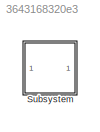
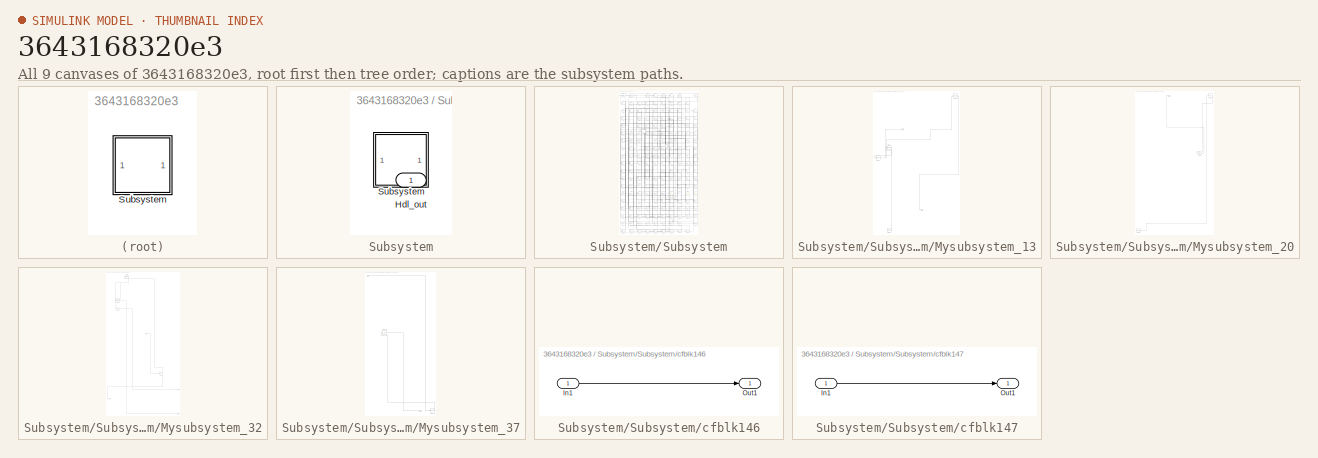
[diagram: thumbnail index - all 9 canvases of the model, root first then tree order]
MODEL slx_3643168320e3
KIND model
CONFIG AbsTol = auto
CONFIG EnableMultiTasking = off
CONFIG FixedStep = auto
CONFIG MaxStep = auto
CONFIG MinStep = auto
CONFIG RelTol = 1e-3
CONFIG SampleTimeConstraint = Unconstrained
CONFIG SolverName = VariableStepAuto
CONFIG StartTime = 0.0
CONFIG StopTime = 10.0
BLOCK [SubSystem] Subsystem
BLOCK [Outport] Subsystem/Hdl_out
  OutDataTypeStr = uint8
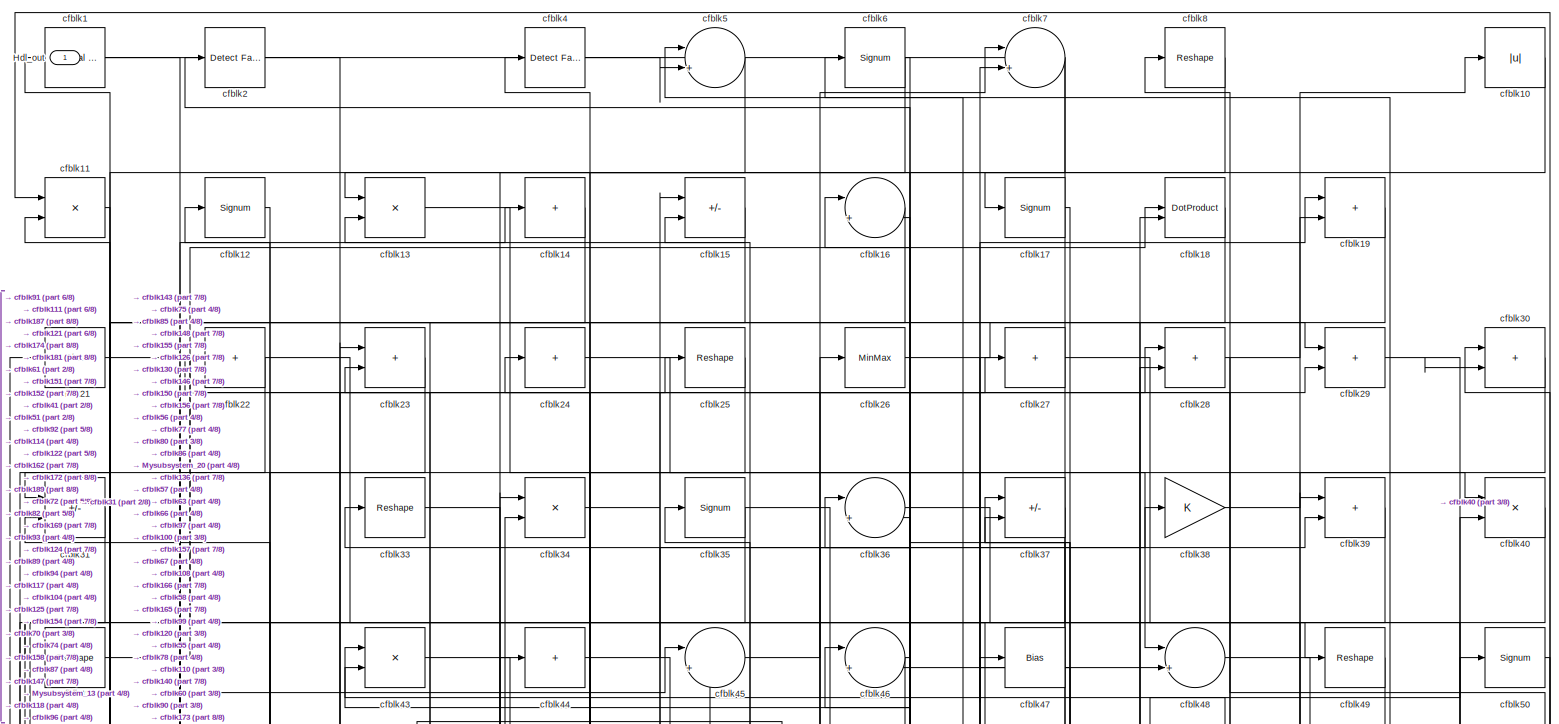
[diagram: Subsystem/Subsystem - part 1/8, full width, top band]
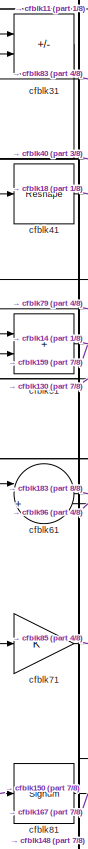
[diagram: Subsystem/Subsystem - part 2/8, top left region]
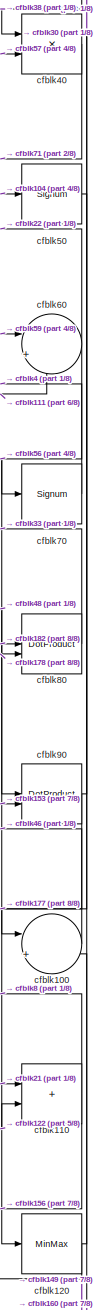
[diagram: Subsystem/Subsystem - part 3/8, middle right region]
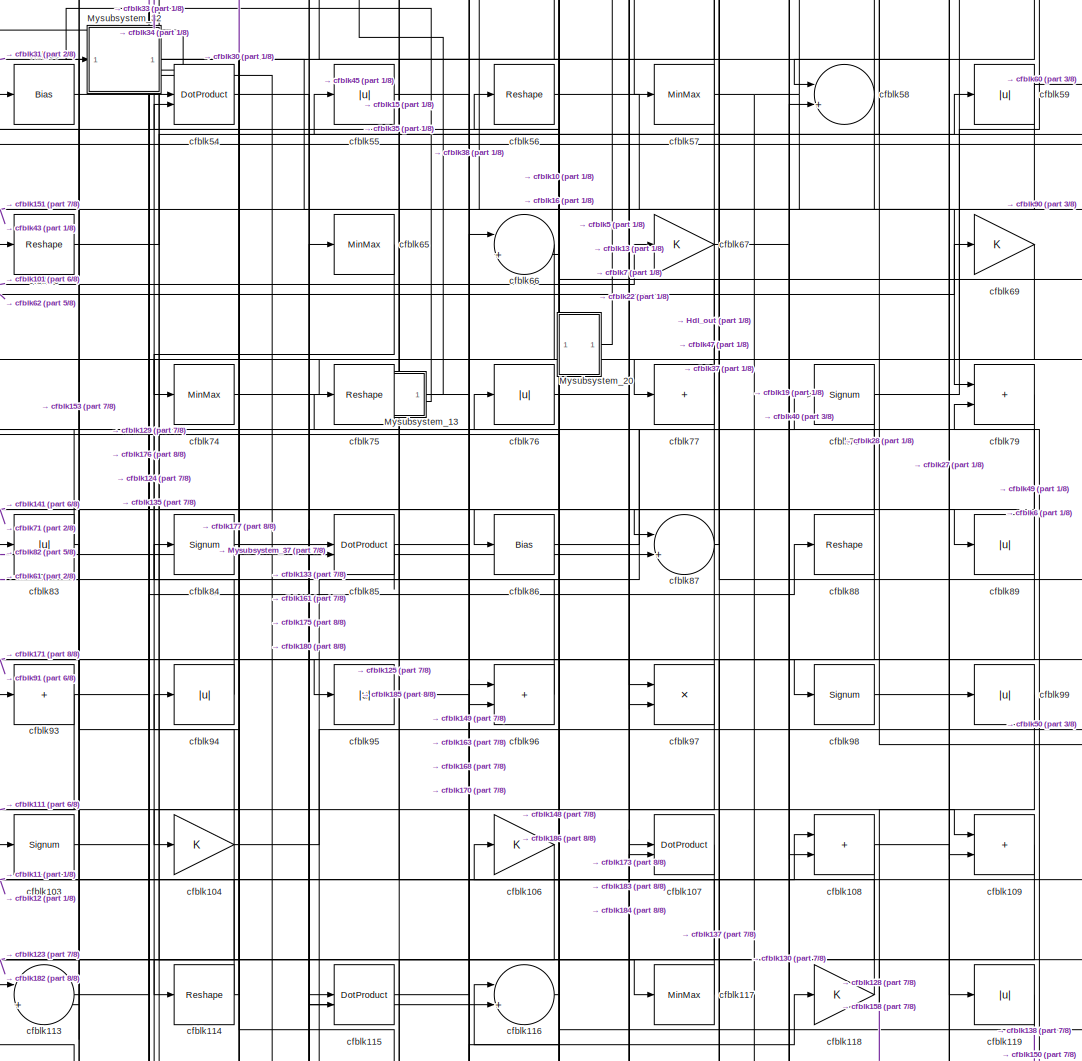
[diagram: Subsystem/Subsystem - part 4/8, central region]
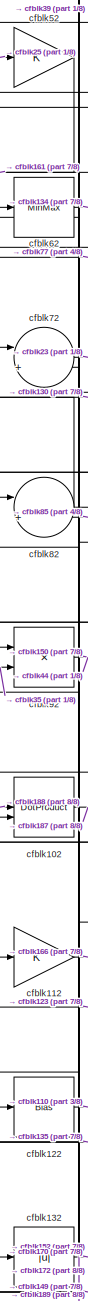
[diagram: Subsystem/Subsystem - part 5/8, middle left region]
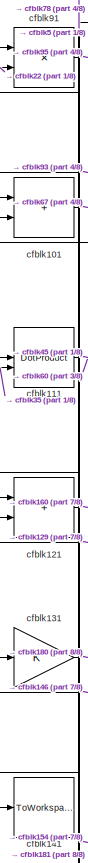
[diagram: Subsystem/Subsystem - part 6/8, middle left region]
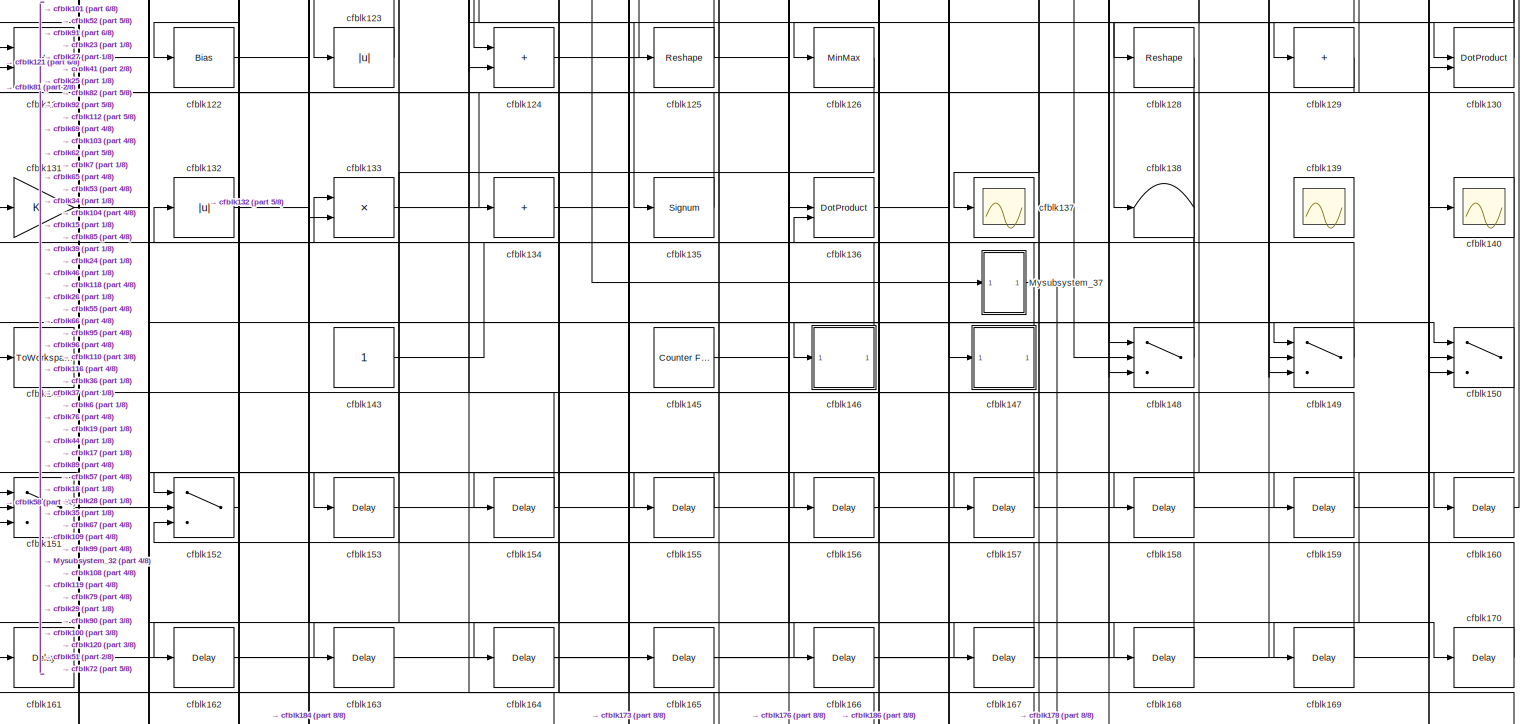
[diagram: Subsystem/Subsystem - part 7/8, full width, bottom band]
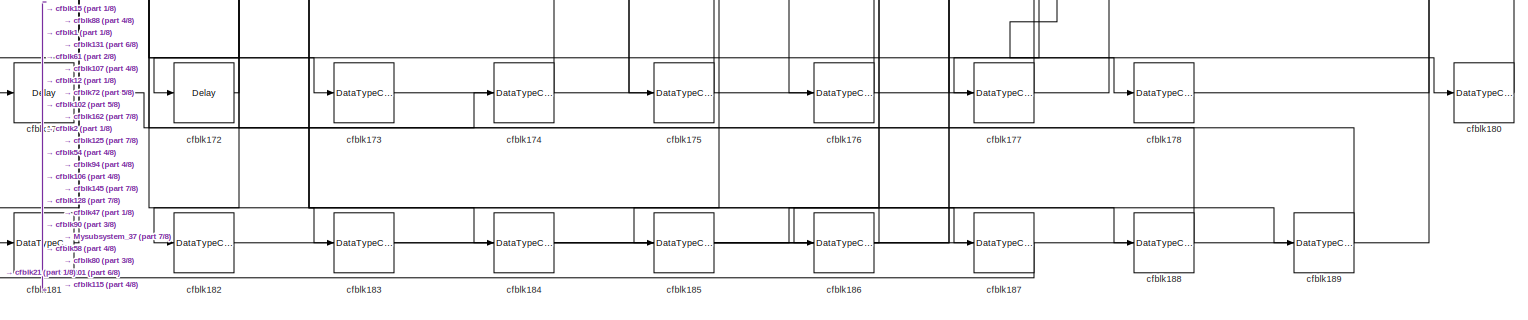
[diagram: Subsystem/Subsystem - part 8/8, full width, bottom band]
BLOCK [SubSystem] Subsystem/Subsystem
BLOCK [Outport] Subsystem/Subsystem/Hdl_out
  OutDataTypeStr = uint8
BLOCK [SubSystem] Subsystem/Subsystem/Mysubsystem_13
  RTWFcnName = Mysubsystem_13
  RTWFcnNameOpts = User specified
  RTWFileNameOpts = Use function name
  RTWSystemCode = Reusable function
  TreatAsAtomicUnit = on
BLOCK [Outport] Subsystem/Subsystem/Mysubsystem_13/Out1
BLOCK [Outport] Subsystem/Subsystem/Mysubsystem_13/Out2
  Port = 2
BLOCK [Reference] Subsystem/Subsystem/Mysubsystem_13/cfblk144  REF=hdlsllib/Sources/Counter
Limited
  SourceBlock = hdlsllib/Sources/Counter\nLimited
  SourceType = Counter Limited
BLOCK [Reshape] Subsystem/Subsystem/Mysubsystem_13/cfblk20
BLOCK [Reshape] Subsystem/Subsystem/Mysubsystem_13/cfblk64
BLOCK [MinMax] Subsystem/Subsystem/Mysubsystem_13/cfblk73
BLOCK [SubSystem] Subsystem/Subsystem/Mysubsystem_20
  RTWFcnName = Mysubsystem_20
  RTWFcnNameOpts = User specified
  RTWFileNameOpts = Use function name
  RTWSystemCode = Reusable function
  TreatAsAtomicUnit = on
BLOCK [Outport] Subsystem/Subsystem/Mysubsystem_20/Out1
BLOCK [Reference] Subsystem/Subsystem/Mysubsystem_20/cfblk142  REF=hdlsllib/Sources/Counter
Limited
  SourceBlock = hdlsllib/Sources/Counter\nLimited
  SourceType = Counter Limited
BLOCK [Gain] Subsystem/Subsystem/Mysubsystem_20/cfblk68
BLOCK [Abs] Subsystem/Subsystem/Mysubsystem_20/cfblk9
  SaturateOnIntegerOverflow = off
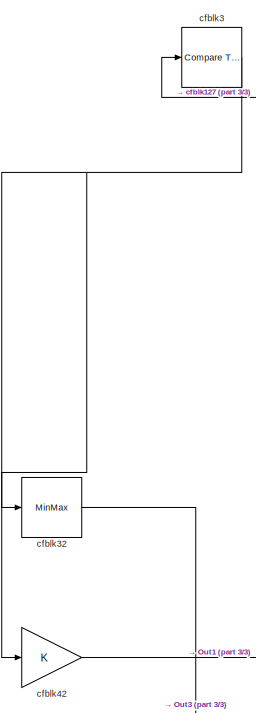
[diagram: Subsystem/Subsystem/Mysubsystem_32 - part 1/3, top left region]
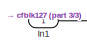
[diagram: Subsystem/Subsystem/Mysubsystem_32 - part 2/3, central region]
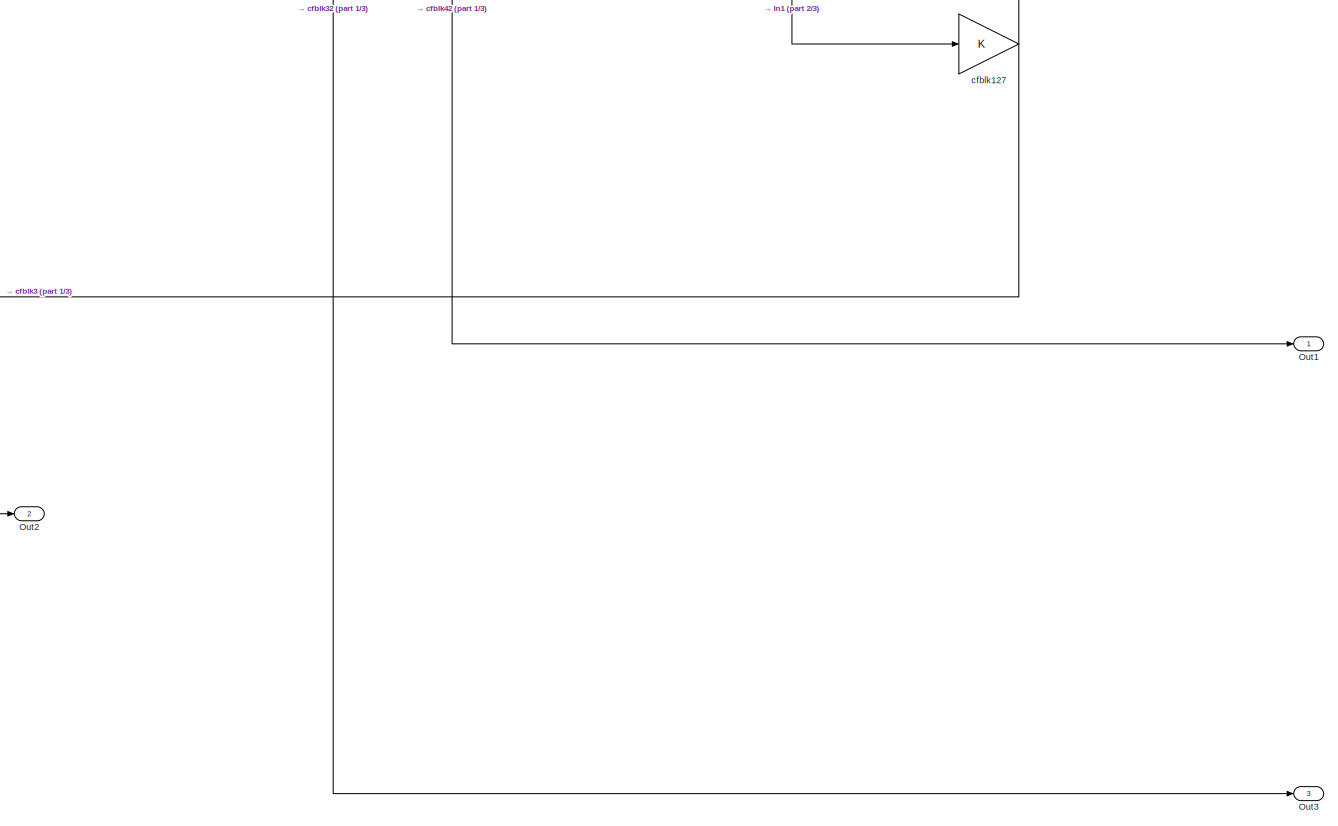
[diagram: Subsystem/Subsystem/Mysubsystem_32 - part 3/3, full width, bottom band]
BLOCK [SubSystem] Subsystem/Subsystem/Mysubsystem_32
  RTWFcnName = Mysubsystem_32
  RTWFcnNameOpts = User specified
  RTWFileNameOpts = Use function name
  RTWSystemCode = Reusable function
  TreatAsAtomicUnit = on
BLOCK [Inport] Subsystem/Subsystem/Mysubsystem_32/In1
BLOCK [Outport] Subsystem/Subsystem/Mysubsystem_32/Out1
BLOCK [Outport] Subsystem/Subsystem/Mysubsystem_32/Out2
  Port = 2
BLOCK [Outport] Subsystem/Subsystem/Mysubsystem_32/Out3
  Port = 3
BLOCK [Gain] Subsystem/Subsystem/Mysubsystem_32/cfblk127
BLOCK [Reference] Subsystem/Subsystem/Mysubsystem_32/cfblk3  REF=hdlsllib/Logic and Bit
Operations/Compare
To Zero
  SourceBlock = hdlsllib/Logic and Bit\nOperations/Compare\nTo Zero
  SourceType = Compare To Zero
BLOCK [MinMax] Subsystem/Subsystem/Mysubsystem_32/cfblk32
BLOCK [Gain] Subsystem/Subsystem/Mysubsystem_32/cfblk42
BLOCK [SubSystem] Subsystem/Subsystem/Mysubsystem_37
  RTWFcnName = Mysubsystem_37
  RTWFcnNameOpts = User specified
  RTWFileNameOpts = Use function name
  RTWSystemCode = Reusable function
  TreatAsAtomicUnit = on
BLOCK [Inport] Subsystem/Subsystem/Mysubsystem_37/In1
BLOCK [Outport] Subsystem/Subsystem/Mysubsystem_37/Out1
BLOCK [Abs] Subsystem/Subsystem/Mysubsystem_37/cfblk105
  SaturateOnIntegerOverflow = off
BLOCK [DataTypeConversion] Subsystem/Subsystem/Mysubsystem_37/cfblk179
  OutDataTypeStr = uint8
  RndMeth = Floor
  SaturateOnIntegerOverflow = off
BLOCK [Reference] Subsystem/Subsystem/cfblk1  REF=hdlsllib/Logic and Bit
Operations/Interval Test
  SourceBlock = hdlsllib/Logic and Bit\nOperations/Interval Test
  SourceType = Interval Test
BLOCK [Abs] Subsystem/Subsystem/cfblk10
  OutDataTypeStr = uint8
  SaturateOnIntegerOverflow = off
BLOCK [Sum] Subsystem/Subsystem/cfblk100
  Inputs = |++
  OutDataTypeStr = uint8
BLOCK [Sum] Subsystem/Subsystem/cfblk101
  IconShape = rectangular
  OutDataTypeStr = uint8
BLOCK [DotProduct] Subsystem/Subsystem/cfblk102
  OutDataTypeStr = uint8
BLOCK [Signum] Subsystem/Subsystem/cfblk103
BLOCK [Gain] Subsystem/Subsystem/cfblk104
  OutDataTypeStr = uint8
BLOCK [Gain] Subsystem/Subsystem/cfblk106
  OutDataTypeStr = uint8
BLOCK [DotProduct] Subsystem/Subsystem/cfblk107
  OutDataTypeStr = uint8
BLOCK [Sum] Subsystem/Subsystem/cfblk108
  IconShape = rectangular
  OutDataTypeStr = uint8
BLOCK [Sum] Subsystem/Subsystem/cfblk109
  IconShape = rectangular
  OutDataTypeStr = uint8
BLOCK [Product] Subsystem/Subsystem/cfblk11
  Inputs = */
  OutDataTypeStr = uint8
  RndMeth = Zero
  SaturateOnIntegerOverflow = on
BLOCK [Sum] Subsystem/Subsystem/cfblk110
  IconShape = rectangular
  OutDataTypeStr = uint8
BLOCK [DotProduct] Subsystem/Subsystem/cfblk111
  OutDataTypeStr = uint8
BLOCK [Gain] Subsystem/Subsystem/cfblk112
  OutDataTypeStr = uint8
BLOCK [Sum] Subsystem/Subsystem/cfblk113
  Inputs = |++
  OutDataTypeStr = uint8
BLOCK [Reshape] Subsystem/Subsystem/cfblk114
BLOCK [DotProduct] Subsystem/Subsystem/cfblk115
  OutDataTypeStr = uint8
BLOCK [Sum] Subsystem/Subsystem/cfblk116
  Inputs = |++
  OutDataTypeStr = uint8
BLOCK [MinMax] Subsystem/Subsystem/cfblk117
  OutDataTypeStr = uint8
BLOCK [Gain] Subsystem/Subsystem/cfblk118
  OutDataTypeStr = uint8
BLOCK [Abs] Subsystem/Subsystem/cfblk119
  OutDataTypeStr = uint8
  SaturateOnIntegerOverflow = off
BLOCK [Signum] Subsystem/Subsystem/cfblk12
BLOCK [MinMax] Subsystem/Subsystem/cfblk120
  OutDataTypeStr = uint8
BLOCK [Sum] Subsystem/Subsystem/cfblk121
  IconShape = rectangular
  OutDataTypeStr = uint8
BLOCK [Bias] Subsystem/Subsystem/cfblk122
  Bias = 0.0
  SaturateOnIntegerOverflow = off
BLOCK [Abs] Subsystem/Subsystem/cfblk123
  OutDataTypeStr = uint8
  SaturateOnIntegerOverflow = off
BLOCK [Sum] Subsystem/Subsystem/cfblk124
  IconShape = rectangular
  OutDataTypeStr = uint8
BLOCK [Reshape] Subsystem/Subsystem/cfblk125
BLOCK [MinMax] Subsystem/Subsystem/cfblk126
  OutDataTypeStr = uint8
BLOCK [Reshape] Subsystem/Subsystem/cfblk128
BLOCK [Sum] Subsystem/Subsystem/cfblk129
  IconShape = rectangular
  Inputs = +
  OutDataTypeStr = uint8
BLOCK [Product] Subsystem/Subsystem/cfblk13
  Inputs = */
  OutDataTypeStr = uint8
  RndMeth = Zero
  SaturateOnIntegerOverflow = on
BLOCK [DotProduct] Subsystem/Subsystem/cfblk130
  OutDataTypeStr = uint8
BLOCK [Gain] Subsystem/Subsystem/cfblk131
  OutDataTypeStr = uint8
BLOCK [Abs] Subsystem/Subsystem/cfblk132
  OutDataTypeStr = uint8
  SaturateOnIntegerOverflow = off
BLOCK [Product] Subsystem/Subsystem/cfblk133
  Inputs = */
  OutDataTypeStr = uint8
  RndMeth = Zero
  SaturateOnIntegerOverflow = on
BLOCK [Sum] Subsystem/Subsystem/cfblk134
  IconShape = rectangular
  Inputs = +
  OutDataTypeStr = uint8
BLOCK [Signum] Subsystem/Subsystem/cfblk135
BLOCK [DotProduct] Subsystem/Subsystem/cfblk136
  OutDataTypeStr = uint8
BLOCK [Scope] Subsystem/Subsystem/cfblk137
  Floating = off
  NumInputPorts = 1
  ScopeSpecificationString = Simulink.scopes.TimeScopeBlockCfg('CurrentConfiguration', extmgr.ConfigurationSet(extmgr.Configuration('Core','General UI',true),extmgr.Configuration('Core','Source UI',true),extmgr.Configuration('Sources','WiredSimulink',true,'DataLoggingVariableName','ScopeData1','DataLoggingSaveFormat','Array','DataLoggingLimitDataPoints',true,'DataLoggingDecimation','1'),extmgr.Configuration('Visuals','Time Do...<+868ch>
BLOCK [Terminator] Subsystem/Subsystem/cfblk138
BLOCK [Scope] Subsystem/Subsystem/cfblk139
  Floating = on
  NumInputPorts = 1
  ScopeSpecificationString = Simulink.scopes.TimeScopeBlockCfg('CurrentConfiguration', extmgr.ConfigurationSet(extmgr.Configuration('Core','General UI',true,'FigureColor',[0.156862745098039 0.156862745098039 0.156862745098039]),extmgr.Configuration('Core','Source UI',true),extmgr.Configuration('Sources','WiredSimulink',true,'DataLoggingVariableName','ScopeData2','DataLoggingSaveFormat','StructureWithTime','DataLoggingLimitDat...<+2713ch>
BLOCK [Sum] Subsystem/Subsystem/cfblk14
  IconShape = rectangular
  Inputs = +
  OutDataTypeStr = uint8
BLOCK [Scope] Subsystem/Subsystem/cfblk140
  Floating = off
  NumInputPorts = 1
  ScopeSpecificationString = Simulink.scopes.TimeScopeBlockCfg('CurrentConfiguration', extmgr.ConfigurationSet(extmgr.Configuration('Core','General UI',true),extmgr.Configuration('Core','Source UI',true),extmgr.Configuration('Sources','WiredSimulink',true,'DataLoggingSaveFormat','Array','DataLoggingLimitDataPoints',true,'DataLoggingDecimation','1'),extmgr.Configuration('Visuals','Time Domain',true,'DisplayPropertyDefaults',st...<+829ch>
BLOCK [ToWorkspace] Subsystem/Subsystem/cfblk141
  MaxDataPoints = inf
  SampleTime = -1
  SaveFormat = Timeseries
  VariableName = simout
BLOCK [Constant] Subsystem/Subsystem/cfblk143
  OutDataTypeStr = uint8
  SampleTime = -1
BLOCK [Reference] Subsystem/Subsystem/cfblk145  REF=hdlsllib/Sources/Counter
Free-Running
  SourceBlock = hdlsllib/Sources/Counter\nFree-Running
  SourceType = Counter Free-Running
BLOCK [SubSystem] Subsystem/Subsystem/cfblk146
  LibrarySourceBlock = hdlsllib/Ports &\nSubsystems/Subsystem
BLOCK [Inport] Subsystem/Subsystem/cfblk146/In1
BLOCK [Outport] Subsystem/Subsystem/cfblk146/Out1
BLOCK [SubSystem] Subsystem/Subsystem/cfblk147
  LibrarySourceBlock = hdlsllib/Ports &\nSubsystems/Subsystem
BLOCK [Inport] Subsystem/Subsystem/cfblk147/In1
BLOCK [Outport] Subsystem/Subsystem/cfblk147/Out1
BLOCK [Switch] Subsystem/Subsystem/cfblk148
  InputSameDT = off
  OutDataTypeStr = uint8
  SaturateOnIntegerOverflow = off
BLOCK [Switch] Subsystem/Subsystem/cfblk149
  InputSameDT = off
  OutDataTypeStr = uint8
  SaturateOnIntegerOverflow = off
BLOCK [Sum] Subsystem/Subsystem/cfblk15
  IconShape = rectangular
  Inputs = +-
  OutDataTypeStr = uint8
BLOCK [Switch] Subsystem/Subsystem/cfblk150
  InputSameDT = off
  OutDataTypeStr = uint8
  SaturateOnIntegerOverflow = off
BLOCK [Switch] Subsystem/Subsystem/cfblk151
  InputSameDT = off
  OutDataTypeStr = uint8
  SaturateOnIntegerOverflow = off
BLOCK [Switch] Subsystem/Subsystem/cfblk152
  InputSameDT = off
  OutDataTypeStr = uint8
  SaturateOnIntegerOverflow = off
BLOCK [Delay] Subsystem/Subsystem/cfblk153
  InputPortMap = u0
  SampleTime = 1
BLOCK [Delay] Subsystem/Subsystem/cfblk154
  InputPortMap = u0
  SampleTime = 1
BLOCK [Delay] Subsystem/Subsystem/cfblk155
  InputPortMap = u0
  SampleTime = 1
BLOCK [Delay] Subsystem/Subsystem/cfblk156
  InputPortMap = u0
  SampleTime = 1
BLOCK [Delay] Subsystem/Subsystem/cfblk157
  InputPortMap = u0
  SampleTime = 1
BLOCK [Delay] Subsystem/Subsystem/cfblk158
  InputPortMap = u0
  SampleTime = 1
BLOCK [Delay] Subsystem/Subsystem/cfblk159
  InputPortMap = u0
  SampleTime = 1
BLOCK [Sum] Subsystem/Subsystem/cfblk16
  Inputs = |++
  OutDataTypeStr = uint8
BLOCK [Delay] Subsystem/Subsystem/cfblk160
  InputPortMap = u0
  SampleTime = 1
BLOCK [Delay] Subsystem/Subsystem/cfblk161
  InputPortMap = u0
  SampleTime = 1
BLOCK [Delay] Subsystem/Subsystem/cfblk162
  InputPortMap = u0
  SampleTime = 1
BLOCK [Delay] Subsystem/Subsystem/cfblk163
  InputPortMap = u0
  SampleTime = 1
BLOCK [Delay] Subsystem/Subsystem/cfblk164
  InputPortMap = u0
  SampleTime = 1
BLOCK [Delay] Subsystem/Subsystem/cfblk165
  InputPortMap = u0
  SampleTime = 1
BLOCK [Delay] Subsystem/Subsystem/cfblk166
  InputPortMap = u0
  SampleTime = 1
BLOCK [Delay] Subsystem/Subsystem/cfblk167
  InputPortMap = u0
  SampleTime = 1
BLOCK [Delay] Subsystem/Subsystem/cfblk168
  InputPortMap = u0
  SampleTime = 1
BLOCK [Delay] Subsystem/Subsystem/cfblk169
  InputPortMap = u0
  SampleTime = 1
BLOCK [Signum] Subsystem/Subsystem/cfblk17
BLOCK [Delay] Subsystem/Subsystem/cfblk170
  InputPortMap = u0
  SampleTime = 1
BLOCK [Delay] Subsystem/Subsystem/cfblk171
  InputPortMap = u0
  SampleTime = 1
BLOCK [Delay] Subsystem/Subsystem/cfblk172
  InputPortMap = u0
  SampleTime = 1
BLOCK [DataTypeConversion] Subsystem/Subsystem/cfblk173
  OutDataTypeStr = uint8
  RndMeth = Floor
  SaturateOnIntegerOverflow = off
BLOCK [DataTypeConversion] Subsystem/Subsystem/cfblk174
  OutDataTypeStr = uint8
  RndMeth = Floor
  SaturateOnIntegerOverflow = off
BLOCK [DataTypeConversion] Subsystem/Subsystem/cfblk175
  OutDataTypeStr = uint8
  RndMeth = Floor
  SaturateOnIntegerOverflow = off
BLOCK [DataTypeConversion] Subsystem/Subsystem/cfblk176
  OutDataTypeStr = uint8
  RndMeth = Floor
  SaturateOnIntegerOverflow = off
BLOCK [DataTypeConversion] Subsystem/Subsystem/cfblk177
  OutDataTypeStr = uint8
  RndMeth = Floor
  SaturateOnIntegerOverflow = off
BLOCK [DataTypeConversion] Subsystem/Subsystem/cfblk178
  OutDataTypeStr = uint8
  RndMeth = Floor
  SaturateOnIntegerOverflow = off
BLOCK [DotProduct] Subsystem/Subsystem/cfblk18
  OutDataTypeStr = uint8
BLOCK [DataTypeConversion] Subsystem/Subsystem/cfblk180
  OutDataTypeStr = uint8
  RndMeth = Floor
  SaturateOnIntegerOverflow = off
BLOCK [DataTypeConversion] Subsystem/Subsystem/cfblk181
  OutDataTypeStr = uint8
  RndMeth = Floor
  SaturateOnIntegerOverflow = off
BLOCK [DataTypeConversion] Subsystem/Subsystem/cfblk182
  OutDataTypeStr = uint8
  RndMeth = Floor
  SaturateOnIntegerOverflow = off
BLOCK [DataTypeConversion] Subsystem/Subsystem/cfblk183
  OutDataTypeStr = uint8
  RndMeth = Floor
  SaturateOnIntegerOverflow = off
BLOCK [DataTypeConversion] Subsystem/Subsystem/cfblk184
  OutDataTypeStr = uint8
  RndMeth = Floor
  SaturateOnIntegerOverflow = off
BLOCK [DataTypeConversion] Subsystem/Subsystem/cfblk185
  OutDataTypeStr = uint8
  RndMeth = Floor
  SaturateOnIntegerOverflow = off
BLOCK [DataTypeConversion] Subsystem/Subsystem/cfblk186
  OutDataTypeStr = uint8
  RndMeth = Floor
  SaturateOnIntegerOverflow = off
BLOCK [DataTypeConversion] Subsystem/Subsystem/cfblk187
  OutDataTypeStr = uint8
  RndMeth = Floor
  SaturateOnIntegerOverflow = off
BLOCK [DataTypeConversion] Subsystem/Subsystem/cfblk188
  OutDataTypeStr = uint8
  RndMeth = Floor
  SaturateOnIntegerOverflow = off
BLOCK [DataTypeConversion] Subsystem/Subsystem/cfblk189
  OutDataTypeStr = uint8
  RndMeth = Floor
  SaturateOnIntegerOverflow = off
BLOCK [Sum] Subsystem/Subsystem/cfblk19
  IconShape = rectangular
  OutDataTypeStr = uint8
BLOCK [Reference] Subsystem/Subsystem/cfblk2  REF=hdlsllib/Logic and Bit
Operations/Detect Fall
Nonpositive
  SourceBlock = hdlsllib/Logic and Bit\nOperations/Detect Fall\nNonpositive
  SourceType = Detect Fall Nonpositive
BLOCK [Bias] Subsystem/Subsystem/cfblk21
  Bias = 0.0
  SaturateOnIntegerOverflow = off
BLOCK [Sum] Subsystem/Subsystem/cfblk22
  IconShape = rectangular
  Inputs = +
  OutDataTypeStr = uint8
BLOCK [Sum] Subsystem/Subsystem/cfblk23
  IconShape = rectangular
  OutDataTypeStr = uint8
BLOCK [Sum] Subsystem/Subsystem/cfblk24
  IconShape = rectangular
  Inputs = +
  OutDataTypeStr = uint8
BLOCK [Reshape] Subsystem/Subsystem/cfblk25
BLOCK [MinMax] Subsystem/Subsystem/cfblk26
  OutDataTypeStr = uint8
BLOCK [Sum] Subsystem/Subsystem/cfblk27
  IconShape = rectangular
  Inputs = +
  OutDataTypeStr = uint8
BLOCK [Sum] Subsystem/Subsystem/cfblk28
  IconShape = rectangular
  OutDataTypeStr = uint8
BLOCK [Sum] Subsystem/Subsystem/cfblk29
  IconShape = rectangular
  OutDataTypeStr = uint8
BLOCK [Sum] Subsystem/Subsystem/cfblk30
  IconShape = rectangular
  OutDataTypeStr = uint8
BLOCK [Sum] Subsystem/Subsystem/cfblk31
  IconShape = rectangular
  Inputs = +-
  OutDataTypeStr = uint8
BLOCK [Reshape] Subsystem/Subsystem/cfblk33
BLOCK [Product] Subsystem/Subsystem/cfblk34
  Inputs = */
  OutDataTypeStr = uint8
  RndMeth = Zero
  SaturateOnIntegerOverflow = on
BLOCK [Signum] Subsystem/Subsystem/cfblk35
BLOCK [Sum] Subsystem/Subsystem/cfblk36
  Inputs = |++
  OutDataTypeStr = uint8
BLOCK [Sum] Subsystem/Subsystem/cfblk37
  IconShape = rectangular
  Inputs = +-
  OutDataTypeStr = uint8
BLOCK [Gain] Subsystem/Subsystem/cfblk38
  OutDataTypeStr = uint8
BLOCK [Sum] Subsystem/Subsystem/cfblk39
  IconShape = rectangular
  OutDataTypeStr = uint8
BLOCK [Reference] Subsystem/Subsystem/cfblk4  REF=hdlsllib/Logic and Bit
Operations/Detect Fall
Nonpositive
  SourceBlock = hdlsllib/Logic and Bit\nOperations/Detect Fall\nNonpositive
  SourceType = Detect Fall Nonpositive
BLOCK [Product] Subsystem/Subsystem/cfblk40
  Inputs = */
  OutDataTypeStr = uint8
  RndMeth = Zero
  SaturateOnIntegerOverflow = on
BLOCK [Reshape] Subsystem/Subsystem/cfblk41
BLOCK [Product] Subsystem/Subsystem/cfblk43
  Inputs = */
  OutDataTypeStr = uint8
  RndMeth = Zero
  SaturateOnIntegerOverflow = on
BLOCK [Sum] Subsystem/Subsystem/cfblk44
  IconShape = rectangular
  Inputs = +
  OutDataTypeStr = uint8
BLOCK [Sum] Subsystem/Subsystem/cfblk45
  Inputs = |++
  OutDataTypeStr = uint8
BLOCK [Sum] Subsystem/Subsystem/cfblk46
  Inputs = |++
  OutDataTypeStr = uint8
BLOCK [Bias] Subsystem/Subsystem/cfblk47
  Bias = 0.0
  SaturateOnIntegerOverflow = off
BLOCK [Sum] Subsystem/Subsystem/cfblk48
  Inputs = |++
  OutDataTypeStr = uint8
BLOCK [Reshape] Subsystem/Subsystem/cfblk49
BLOCK [Sum] Subsystem/Subsystem/cfblk5
  Inputs = |++
  OutDataTypeStr = uint8
BLOCK [Signum] Subsystem/Subsystem/cfblk50
BLOCK [Sum] Subsystem/Subsystem/cfblk51
  IconShape = rectangular
  OutDataTypeStr = uint8
BLOCK [Gain] Subsystem/Subsystem/cfblk52
  OutDataTypeStr = uint8
BLOCK [Bias] Subsystem/Subsystem/cfblk53
  Bias = 0.0
  SaturateOnIntegerOverflow = off
BLOCK [DotProduct] Subsystem/Subsystem/cfblk54
  OutDataTypeStr = uint8
BLOCK [Abs] Subsystem/Subsystem/cfblk55
  OutDataTypeStr = uint8
  SaturateOnIntegerOverflow = off
BLOCK [Reshape] Subsystem/Subsystem/cfblk56
BLOCK [MinMax] Subsystem/Subsystem/cfblk57
  OutDataTypeStr = uint8
BLOCK [Sum] Subsystem/Subsystem/cfblk58
  Inputs = |++
  OutDataTypeStr = uint8
BLOCK [Abs] Subsystem/Subsystem/cfblk59
  OutDataTypeStr = uint8
  SaturateOnIntegerOverflow = off
BLOCK [Signum] Subsystem/Subsystem/cfblk6
BLOCK [Sum] Subsystem/Subsystem/cfblk60
  Inputs = |++
  OutDataTypeStr = uint8
BLOCK [Sum] Subsystem/Subsystem/cfblk61
  Inputs = |++
  OutDataTypeStr = uint8
BLOCK [MinMax] Subsystem/Subsystem/cfblk62
  OutDataTypeStr = uint8
BLOCK [Reshape] Subsystem/Subsystem/cfblk63
BLOCK [MinMax] Subsystem/Subsystem/cfblk65
  OutDataTypeStr = uint8
BLOCK [Sum] Subsystem/Subsystem/cfblk66
  Inputs = |++
  OutDataTypeStr = uint8
BLOCK [Gain] Subsystem/Subsystem/cfblk67
  OutDataTypeStr = uint8
BLOCK [Gain] Subsystem/Subsystem/cfblk69
  OutDataTypeStr = uint8
BLOCK [Sum] Subsystem/Subsystem/cfblk7
  Inputs = |++
  OutDataTypeStr = uint8
BLOCK [Signum] Subsystem/Subsystem/cfblk70
BLOCK [Gain] Subsystem/Subsystem/cfblk71
  OutDataTypeStr = uint8
BLOCK [Sum] Subsystem/Subsystem/cfblk72
  Inputs = |++
  OutDataTypeStr = uint8
BLOCK [MinMax] Subsystem/Subsystem/cfblk74
  OutDataTypeStr = uint8
BLOCK [Reshape] Subsystem/Subsystem/cfblk75
BLOCK [Abs] Subsystem/Subsystem/cfblk76
  OutDataTypeStr = uint8
  SaturateOnIntegerOverflow = off
BLOCK [Sum] Subsystem/Subsystem/cfblk77
  IconShape = rectangular
  Inputs = +
  OutDataTypeStr = uint8
BLOCK [Signum] Subsystem/Subsystem/cfblk78
BLOCK [Sum] Subsystem/Subsystem/cfblk79
  IconShape = rectangular
  OutDataTypeStr = uint8
BLOCK [Reshape] Subsystem/Subsystem/cfblk8
BLOCK [DotProduct] Subsystem/Subsystem/cfblk80
  OutDataTypeStr = uint8
BLOCK [Signum] Subsystem/Subsystem/cfblk81
BLOCK [Sum] Subsystem/Subsystem/cfblk82
  Inputs = |++
  OutDataTypeStr = uint8
BLOCK [Abs] Subsystem/Subsystem/cfblk83
  OutDataTypeStr = uint8
  SaturateOnIntegerOverflow = off
BLOCK [Signum] Subsystem/Subsystem/cfblk84
BLOCK [DotProduct] Subsystem/Subsystem/cfblk85
  OutDataTypeStr = uint8
BLOCK [Bias] Subsystem/Subsystem/cfblk86
  Bias = 0.0
  SaturateOnIntegerOverflow = off
BLOCK [Sum] Subsystem/Subsystem/cfblk87
  Inputs = |++
  OutDataTypeStr = uint8
BLOCK [Reshape] Subsystem/Subsystem/cfblk88
BLOCK [Abs] Subsystem/Subsystem/cfblk89
  OutDataTypeStr = uint8
  SaturateOnIntegerOverflow = off
BLOCK [DotProduct] Subsystem/Subsystem/cfblk90
  OutDataTypeStr = uint8
BLOCK [Product] Subsystem/Subsystem/cfblk91
  Inputs = */
  OutDataTypeStr = uint8
  RndMeth = Zero
  SaturateOnIntegerOverflow = on
BLOCK [Product] Subsystem/Subsystem/cfblk92
  Inputs = */
  OutDataTypeStr = uint8
  RndMeth = Zero
  SaturateOnIntegerOverflow = on
BLOCK [Sum] Subsystem/Subsystem/cfblk93
  IconShape = rectangular
  Inputs = +
  OutDataTypeStr = uint8
BLOCK [Abs] Subsystem/Subsystem/cfblk94
  OutDataTypeStr = uint8
  SaturateOnIntegerOverflow = off
BLOCK [Abs] Subsystem/Subsystem/cfblk95
  OutDataTypeStr = uint8
  SaturateOnIntegerOverflow = off
BLOCK [Sum] Subsystem/Subsystem/cfblk96
  IconShape = rectangular
  OutDataTypeStr = uint8
BLOCK [Product] Subsystem/Subsystem/cfblk97
  Inputs = */
  OutDataTypeStr = uint8
  RndMeth = Zero
  SaturateOnIntegerOverflow = on
BLOCK [Signum] Subsystem/Subsystem/cfblk98
BLOCK [Abs] Subsystem/Subsystem/cfblk99
  OutDataTypeStr = uint8
  SaturateOnIntegerOverflow = off
LINE Subsystem/Subsystem/Mysubsystem_13/cfblk144:1 -> Subsystem/Subsystem/Mysubsystem_13/cfblk64:1
LINE Subsystem/Subsystem/Mysubsystem_13/cfblk20:1 -> Subsystem/Subsystem/Mysubsystem_13/Out2:1
LINE Subsystem/Subsystem/Mysubsystem_13/cfblk64:1 -> Subsystem/Subsystem/Mysubsystem_13/cfblk73:1
NET Subsystem/Subsystem/Mysubsystem_13/cfblk73:1 -> Subsystem/Subsystem/Mysubsystem_13/Out1:1, Subsystem/Subsystem/Mysubsystem_13/cfblk20:1
LINE Subsystem/Subsystem/Mysubsystem_13:1 -> Subsystem/Subsystem/cfblk45:2
LINE Subsystem/Subsystem/Mysubsystem_13:2 -> Subsystem/Subsystem/Mysubsystem_32:1
LINE Subsystem/Subsystem/Mysubsystem_20/cfblk142:1 -> Subsystem/Subsystem/Mysubsystem_20/cfblk9:1
LINE Subsystem/Subsystem/Mysubsystem_20/cfblk68:1 -> Subsystem/Subsystem/Mysubsystem_20/Out1:1
LINE Subsystem/Subsystem/Mysubsystem_20/cfblk9:1 -> Subsystem/Subsystem/Mysubsystem_20/cfblk68:1
LINE Subsystem/Subsystem/Mysubsystem_20:1 -> Subsystem/Subsystem/cfblk5:1
LINE Subsystem/Subsystem/Mysubsystem_32/In1:1 -> Subsystem/Subsystem/Mysubsystem_32/cfblk127:1
NET Subsystem/Subsystem/Mysubsystem_32/cfblk127:1 -> Subsystem/Subsystem/Mysubsystem_32/Out2:1, Subsystem/Subsystem/Mysubsystem_32/cfblk3:1
LINE Subsystem/Subsystem/Mysubsystem_32/cfblk32:1 -> Subsystem/Subsystem/Mysubsystem_32/Out3:1
NET Subsystem/Subsystem/Mysubsystem_32/cfblk3:1 -> Subsystem/Subsystem/Mysubsystem_32/cfblk32:1, Subsystem/Subsystem/Mysubsystem_32/cfblk42:1
LINE Subsystem/Subsystem/Mysubsystem_32/cfblk42:1 -> Subsystem/Subsystem/Mysubsystem_32/Out1:1
LINE Subsystem/Subsystem/Mysubsystem_32:1 -> Subsystem/Subsystem/cfblk149:2
LINE Subsystem/Subsystem/Mysubsystem_32:2 -> Subsystem/Subsystem/cfblk151:3
LINE Subsystem/Subsystem/Mysubsystem_32:3 -> Subsystem/Subsystem/Mysubsystem_37:1
LINE Subsystem/Subsystem/Mysubsystem_37/In1:1 -> Subsystem/Subsystem/Mysubsystem_37/cfblk179:1
LINE Subsystem/Subsystem/Mysubsystem_37/cfblk105:1 -> Subsystem/Subsystem/Mysubsystem_37/Out1:1
LINE Subsystem/Subsystem/Mysubsystem_37/cfblk179:1 -> Subsystem/Subsystem/Mysubsystem_37/cfblk105:1
LINE Subsystem/Subsystem/Mysubsystem_37:1 -> Subsystem/Subsystem/cfblk178:1
LINE Subsystem/Subsystem/cfblk100:1 -> Subsystem/Subsystem/cfblk46:2
LINE Subsystem/Subsystem/cfblk101:1 -> Subsystem/Subsystem/cfblk67:1
LINE Subsystem/Subsystem/cfblk102:1 -> Subsystem/Subsystem/cfblk187:1
LINE Subsystem/Subsystem/cfblk103:1 -> Subsystem/Subsystem/cfblk129:1
NET Subsystem/Subsystem/cfblk104:1 -> Subsystem/Subsystem/cfblk133:2, Subsystem/Subsystem/cfblk148:3, Subsystem/Subsystem/cfblk50:1, Subsystem/Subsystem/cfblk83:1
LINE Subsystem/Subsystem/cfblk106:1 -> Subsystem/Subsystem/cfblk185:1
LINE Subsystem/Subsystem/cfblk107:1 -> Subsystem/Subsystem/cfblk182:1
NET Subsystem/Subsystem/cfblk108:1 -> Subsystem/Subsystem/cfblk123:1, Subsystem/Subsystem/cfblk150:2
LINE Subsystem/Subsystem/cfblk109:1 -> Subsystem/Subsystem/cfblk158:1
NET Subsystem/Subsystem/cfblk10:1 -> Subsystem/Subsystem/cfblk74:1, Subsystem/Subsystem/cfblk86:1
NET Subsystem/Subsystem/cfblk110:1 -> Subsystem/Subsystem/cfblk156:1, Subsystem/Subsystem/cfblk8:1
NET Subsystem/Subsystem/cfblk111:1 -> Subsystem/Subsystem/cfblk45:1, Subsystem/Subsystem/cfblk60:2
LINE Subsystem/Subsystem/cfblk112:1 -> Subsystem/Subsystem/cfblk166:1
LINE Subsystem/Subsystem/cfblk113:1 -> Subsystem/Subsystem/cfblk69:1
NET Subsystem/Subsystem/cfblk114:1 -> Subsystem/Subsystem/cfblk12:1, Subsystem/Subsystem/cfblk84:1
LINE Subsystem/Subsystem/cfblk115:1 -> Subsystem/Subsystem/cfblk108:1
LINE Subsystem/Subsystem/cfblk116:1 -> Subsystem/Subsystem/cfblk56:1
LINE Subsystem/Subsystem/cfblk117:1 -> Subsystem/Subsystem/cfblk11:2
LINE Subsystem/Subsystem/cfblk118:1 -> Subsystem/Subsystem/cfblk35:1
LINE Subsystem/Subsystem/cfblk119:1 -> Subsystem/Subsystem/cfblk138:1
LINE Subsystem/Subsystem/cfblk11:1 -> Subsystem/Subsystem/cfblk31:1
NET Subsystem/Subsystem/cfblk120:1 -> Subsystem/Subsystem/cfblk149:3, Subsystem/Subsystem/cfblk30:1
LINE Subsystem/Subsystem/cfblk121:1 -> Subsystem/Subsystem/cfblk160:1
LINE Subsystem/Subsystem/cfblk122:1 -> Subsystem/Subsystem/cfblk110:2
LINE Subsystem/Subsystem/cfblk123:1 -> Subsystem/Subsystem/cfblk112:1
LINE Subsystem/Subsystem/cfblk124:1 -> Subsystem/Subsystem/cfblk39:1
NET Subsystem/Subsystem/cfblk125:1 -> Subsystem/Subsystem/cfblk118:1, Subsystem/Subsystem/cfblk24:1
NET Subsystem/Subsystem/cfblk126:1 -> Subsystem/Subsystem/cfblk163:1, Subsystem/Subsystem/cfblk164:1
LINE Subsystem/Subsystem/cfblk128:1 -> Subsystem/Subsystem/cfblk186:1
LINE Subsystem/Subsystem/cfblk129:1 -> Subsystem/Subsystem/cfblk121:2
LINE Subsystem/Subsystem/cfblk12:1 -> Subsystem/Subsystem/cfblk172:1
NET Subsystem/Subsystem/cfblk130:1 -> Subsystem/Subsystem/cfblk36:2, Subsystem/Subsystem/cfblk51:2, Subsystem/Subsystem/cfblk72:1
LINE Subsystem/Subsystem/cfblk131:1 -> Subsystem/Subsystem/cfblk180:1
LINE Subsystem/Subsystem/cfblk132:1 -> Subsystem/Subsystem/cfblk170:1
LINE Subsystem/Subsystem/cfblk133:1 -> Subsystem/Subsystem/cfblk65:1
LINE Subsystem/Subsystem/cfblk134:1 -> Subsystem/Subsystem/cfblk165:1
LINE Subsystem/Subsystem/cfblk135:1 -> Subsystem/Subsystem/cfblk82:1
LINE Subsystem/Subsystem/cfblk136:1 -> Subsystem/Subsystem/cfblk19:1
LINE Subsystem/Subsystem/cfblk13:1 -> Subsystem/Subsystem/cfblk97:1
NET Subsystem/Subsystem/cfblk143:1 -> Subsystem/Subsystem/cfblk26:1, Subsystem/Subsystem/cfblk28:2
LINE Subsystem/Subsystem/cfblk145:1 -> Subsystem/Subsystem/cfblk176:1
LINE Subsystem/Subsystem/cfblk146/In1:1 -> Subsystem/Subsystem/cfblk146/Out1:1
LINE Subsystem/Subsystem/cfblk146:1 -> Subsystem/Subsystem/cfblk91:1
LINE Subsystem/Subsystem/cfblk147/In1:1 -> Subsystem/Subsystem/cfblk147/Out1:1
LINE Subsystem/Subsystem/cfblk147:1 -> Subsystem/Subsystem/cfblk136:2
NET Subsystem/Subsystem/cfblk148:1 -> Subsystem/Subsystem/cfblk51:1, Subsystem/Subsystem/cfblk76:1
LINE Subsystem/Subsystem/cfblk149:1 -> Subsystem/Subsystem/cfblk132:1
LINE Subsystem/Subsystem/cfblk14:1 -> Subsystem/Subsystem/cfblk41:1
NET Subsystem/Subsystem/cfblk150:1 -> Subsystem/Subsystem/cfblk169:1, Subsystem/Subsystem/cfblk36:1, Subsystem/Subsystem/cfblk79:2, Subsystem/Subsystem/cfblk81:1
NET Subsystem/Subsystem/cfblk151:1 -> Subsystem/Subsystem/cfblk133:1, Subsystem/Subsystem/cfblk27:1
LINE Subsystem/Subsystem/cfblk152:1 -> Subsystem/Subsystem/cfblk92:1
LINE Subsystem/Subsystem/cfblk153:1 -> Subsystem/Subsystem/cfblk90:2
LINE Subsystem/Subsystem/cfblk154:1 -> Subsystem/Subsystem/cfblk101:2
LINE Subsystem/Subsystem/cfblk155:1 -> Subsystem/Subsystem/cfblk152:1
LINE Subsystem/Subsystem/cfblk156:1 -> Subsystem/Subsystem/cfblk46:1
LINE Subsystem/Subsystem/cfblk157:1 -> Subsystem/Subsystem/cfblk34:1
LINE Subsystem/Subsystem/cfblk158:1 -> Subsystem/Subsystem/cfblk15:1
LINE Subsystem/Subsystem/cfblk159:1 -> Subsystem/Subsystem/cfblk136:1
NET Subsystem/Subsystem/cfblk15:1 -> Subsystem/Subsystem/cfblk13:2, Subsystem/Subsystem/cfblk181:1
LINE Subsystem/Subsystem/cfblk160:1 -> Subsystem/Subsystem/cfblk100:2
LINE Subsystem/Subsystem/cfblk161:1 -> Subsystem/Subsystem/cfblk85:1
LINE Subsystem/Subsystem/cfblk162:1 -> Subsystem/Subsystem/cfblk184:1
LINE Subsystem/Subsystem/cfblk163:1 -> Subsystem/Subsystem/cfblk66:1
LINE Subsystem/Subsystem/cfblk164:1 -> Subsystem/Subsystem/cfblk130:2
LINE Subsystem/Subsystem/cfblk165:1 -> Subsystem/Subsystem/cfblk19:2
LINE Subsystem/Subsystem/cfblk166:1 -> Subsystem/Subsystem/cfblk18:2
LINE Subsystem/Subsystem/cfblk167:1 -> Subsystem/Subsystem/cfblk152:3
LINE Subsystem/Subsystem/cfblk168:1 -> Subsystem/Subsystem/cfblk116:1
LINE Subsystem/Subsystem/cfblk169:1 -> Subsystem/Subsystem/cfblk23:2
LINE Subsystem/Subsystem/cfblk16:1 -> Subsystem/Subsystem/cfblk93:1
LINE Subsystem/Subsystem/cfblk170:1 -> Subsystem/Subsystem/cfblk96:1
LINE Subsystem/Subsystem/cfblk171:1 -> Subsystem/Subsystem/cfblk174:1
LINE Subsystem/Subsystem/cfblk172:1 -> Subsystem/Subsystem/cfblk72:2
NET Subsystem/Subsystem/cfblk173:1 -> Subsystem/Subsystem/cfblk125:1, Subsystem/Subsystem/cfblk47:1, Subsystem/Subsystem/cfblk58:2
LINE Subsystem/Subsystem/cfblk174:1 -> Subsystem/Subsystem/cfblk1:1
LINE Subsystem/Subsystem/cfblk175:1 -> Subsystem/Subsystem/cfblk94:1
LINE Subsystem/Subsystem/cfblk176:1 -> Subsystem/Subsystem/cfblk54:1
LINE Subsystem/Subsystem/cfblk177:1 -> Subsystem/Subsystem/cfblk54:2
LINE Subsystem/Subsystem/cfblk178:1 -> Subsystem/Subsystem/cfblk80:2
LINE Subsystem/Subsystem/cfblk17:1 -> Subsystem/Subsystem/cfblk157:1
NET Subsystem/Subsystem/cfblk180:1 -> Subsystem/Subsystem/cfblk101:1, Subsystem/Subsystem/cfblk115:1
LINE Subsystem/Subsystem/cfblk181:1 -> Subsystem/Subsystem/cfblk131:1
LINE Subsystem/Subsystem/cfblk182:1 -> Subsystem/Subsystem/cfblk80:1
LINE Subsystem/Subsystem/cfblk183:1 -> Subsystem/Subsystem/cfblk107:1
LINE Subsystem/Subsystem/cfblk184:1 -> Subsystem/Subsystem/cfblk107:2
LINE Subsystem/Subsystem/cfblk185:1 -> Subsystem/Subsystem/cfblk188:1
LINE Subsystem/Subsystem/cfblk186:1 -> Subsystem/Subsystem/cfblk106:1
LINE Subsystem/Subsystem/cfblk187:1 -> Subsystem/Subsystem/cfblk21:1
LINE Subsystem/Subsystem/cfblk188:1 -> Subsystem/Subsystem/cfblk102:1
LINE Subsystem/Subsystem/cfblk189:1 -> Subsystem/Subsystem/cfblk102:2
LINE Subsystem/Subsystem/cfblk18:1 -> Subsystem/Subsystem/cfblk61:1
NET Subsystem/Subsystem/cfblk19:1 -> Subsystem/Subsystem/cfblk108:2, Subsystem/Subsystem/cfblk114:1, Subsystem/Subsystem/cfblk151:1
LINE Subsystem/Subsystem/cfblk1:1 -> Subsystem/Subsystem/cfblk173:1
LINE Subsystem/Subsystem/cfblk21:1 -> Subsystem/Subsystem/cfblk110:1
NET Subsystem/Subsystem/cfblk22:1 -> Subsystem/Subsystem/cfblk57:1, Subsystem/Subsystem/cfblk91:2
LINE Subsystem/Subsystem/cfblk23:1 -> Subsystem/Subsystem/cfblk152:2
LINE Subsystem/Subsystem/cfblk24:1 -> Subsystem/Subsystem/cfblk48:1
LINE Subsystem/Subsystem/cfblk25:1 -> Subsystem/Subsystem/cfblk162:1
NET Subsystem/Subsystem/cfblk26:1 -> Subsystem/Subsystem/cfblk29:1, Subsystem/Subsystem/cfblk48:2
LINE Subsystem/Subsystem/cfblk27:1 -> Subsystem/Subsystem/cfblk99:1
NET Subsystem/Subsystem/cfblk28:1 -> Subsystem/Subsystem/cfblk10:1, Subsystem/Subsystem/cfblk58:1
NET Subsystem/Subsystem/cfblk29:1 -> Subsystem/Subsystem/cfblk140:1, Subsystem/Subsystem/cfblk30:2
LINE Subsystem/Subsystem/cfblk2:1 -> Subsystem/Subsystem/cfblk189:1
LINE Subsystem/Subsystem/cfblk30:1 -> Subsystem/Subsystem/cfblk104:1
LINE Subsystem/Subsystem/cfblk31:1 -> Subsystem/Subsystem/cfblk79:1
LINE Subsystem/Subsystem/cfblk33:1 -> Subsystem/Subsystem/cfblk89:1
NET Subsystem/Subsystem/cfblk34:1 -> Subsystem/Subsystem/cfblk154:1, Subsystem/Subsystem/cfblk29:2, Subsystem/Subsystem/cfblk87:2
NET Subsystem/Subsystem/cfblk35:1 -> Subsystem/Subsystem/cfblk111:2, Subsystem/Subsystem/cfblk148:1, Subsystem/Subsystem/cfblk92:2
LINE Subsystem/Subsystem/cfblk36:1 -> Subsystem/Subsystem/cfblk49:1
LINE Subsystem/Subsystem/cfblk37:1 -> Subsystem/Subsystem/cfblk146:1
LINE Subsystem/Subsystem/cfblk38:1 -> Subsystem/Subsystem/cfblk40:1
LINE Subsystem/Subsystem/cfblk39:1 -> Subsystem/Subsystem/cfblk122:1
LINE Subsystem/Subsystem/cfblk40:1 -> Subsystem/Subsystem/cfblk71:1
NET Subsystem/Subsystem/cfblk41:1 -> Subsystem/Subsystem/cfblk150:1, Subsystem/Subsystem/cfblk18:1
LINE Subsystem/Subsystem/cfblk43:1 -> Subsystem/Subsystem/cfblk117:1
NET Subsystem/Subsystem/cfblk44:1 -> Subsystem/Subsystem/cfblk147:1, Subsystem/Subsystem/cfblk39:2
LINE Subsystem/Subsystem/cfblk45:1 -> Subsystem/Subsystem/cfblk7:1
NET Subsystem/Subsystem/cfblk46:1 -> Subsystem/Subsystem/cfblk155:1, Subsystem/Subsystem/cfblk16:1
NET Subsystem/Subsystem/cfblk47:1 -> Subsystem/Subsystem/cfblk2:1, Subsystem/Subsystem/cfblk63:1, Subsystem/Subsystem/cfblk66:2
LINE Subsystem/Subsystem/cfblk48:1 -> Subsystem/Subsystem/cfblk120:1
LINE Subsystem/Subsystem/cfblk49:1 -> Subsystem/Subsystem/cfblk55:1
LINE Subsystem/Subsystem/cfblk4:1 -> Subsystem/Subsystem/cfblk5:2
LINE Subsystem/Subsystem/cfblk50:1 -> Subsystem/Subsystem/cfblk100:1
NET Subsystem/Subsystem/cfblk51:1 -> Subsystem/Subsystem/cfblk14:1, Subsystem/Subsystem/cfblk159:1
LINE Subsystem/Subsystem/cfblk52:1 -> Subsystem/Subsystem/cfblk161:1
LINE Subsystem/Subsystem/cfblk53:1 -> Subsystem/Subsystem/cfblk135:1
LINE Subsystem/Subsystem/cfblk54:1 -> Subsystem/Subsystem/cfblk175:1
LINE Subsystem/Subsystem/cfblk55:1 -> Subsystem/Subsystem/cfblk168:1
NET Subsystem/Subsystem/cfblk56:1 -> Subsystem/Subsystem/cfblk16:2, Subsystem/Subsystem/cfblk7:2, Subsystem/Subsystem/cfblk90:1
NET Subsystem/Subsystem/cfblk57:1 -> Subsystem/Subsystem/cfblk119:1, Subsystem/Subsystem/cfblk148:2, Subsystem/Subsystem/cfblk40:2
NET Subsystem/Subsystem/cfblk58:1 -> Subsystem/Subsystem/cfblk151:2, Subsystem/Subsystem/cfblk43:1
NET Subsystem/Subsystem/cfblk59:1 -> Subsystem/Subsystem/cfblk60:1, Subsystem/Subsystem/cfblk87:1
LINE Subsystem/Subsystem/cfblk5:1 -> Subsystem/Subsystem/cfblk121:1
NET Subsystem/Subsystem/cfblk60:1 -> Subsystem/Subsystem/cfblk22:1, Subsystem/Subsystem/cfblk70:1
LINE Subsystem/Subsystem/cfblk61:1 -> Subsystem/Subsystem/cfblk183:1
LINE Subsystem/Subsystem/cfblk62:1 -> Subsystem/Subsystem/cfblk134:1
LINE Subsystem/Subsystem/cfblk63:1 -> Subsystem/Subsystem/cfblk59:1
LINE Subsystem/Subsystem/cfblk65:1 -> Subsystem/Subsystem/cfblk124:1
LINE Subsystem/Subsystem/cfblk66:1 -> Subsystem/Subsystem/cfblk96:2
NET Subsystem/Subsystem/cfblk67:1 -> Subsystem/Subsystem/cfblk130:1, Subsystem/Subsystem/cfblk37:2
LINE Subsystem/Subsystem/cfblk69:1 -> Subsystem/Subsystem/cfblk153:1
NET Subsystem/Subsystem/cfblk6:1 -> Subsystem/Subsystem/cfblk126:1, Subsystem/Subsystem/cfblk13:1
LINE Subsystem/Subsystem/cfblk70:1 -> Subsystem/Subsystem/cfblk4:1
LINE Subsystem/Subsystem/cfblk71:1 -> Subsystem/Subsystem/cfblk85:2
LINE Subsystem/Subsystem/cfblk72:1 -> Subsystem/Subsystem/cfblk23:1
LINE Subsystem/Subsystem/cfblk74:1 -> Subsystem/Subsystem/cfblk77:1
NET Subsystem/Subsystem/cfblk75:1 -> Subsystem/Subsystem/cfblk38:1, Subsystem/Subsystem/cfblk97:2, Subsystem/Subsystem/cfblk98:1
LINE Subsystem/Subsystem/cfblk76:1 -> Subsystem/Subsystem/cfblk109:1
NET Subsystem/Subsystem/cfblk77:1 -> Subsystem/Subsystem/cfblk43:2, Subsystem/Subsystem/cfblk62:1
NET Subsystem/Subsystem/cfblk78:1 -> Subsystem/Subsystem/cfblk141:1, Subsystem/Subsystem/cfblk6:1
LINE Subsystem/Subsystem/cfblk79:1 -> Subsystem/Subsystem/cfblk113:2
LINE Subsystem/Subsystem/cfblk7:1 -> Subsystem/Subsystem/cfblk124:2
LINE Subsystem/Subsystem/cfblk80:1 -> Subsystem/Subsystem/cfblk33:1
LINE Subsystem/Subsystem/cfblk81:1 -> Subsystem/Subsystem/cfblk167:1
NET Subsystem/Subsystem/cfblk82:1 -> Subsystem/Subsystem/cfblk25:1, Subsystem/Subsystem/cfblk52:1
NET Subsystem/Subsystem/cfblk83:1 -> Subsystem/Subsystem/cfblk113:1, Subsystem/Subsystem/cfblk31:2
LINE Subsystem/Subsystem/cfblk84:1 -> Subsystem/Subsystem/cfblk116:2
NET Subsystem/Subsystem/cfblk85:1 -> Subsystem/Subsystem/cfblk28:1, Subsystem/Subsystem/cfblk82:2
LINE Subsystem/Subsystem/cfblk86:1 -> Subsystem/Subsystem/cfblk78:1
LINE Subsystem/Subsystem/cfblk87:1 -> Subsystem/Subsystem/cfblk37:1
NET Subsystem/Subsystem/cfblk88:1 -> Subsystem/Subsystem/cfblk171:1, Subsystem/Subsystem/cfblk53:1
NET Subsystem/Subsystem/cfblk89:1 -> Subsystem/Subsystem/cfblk115:2, Subsystem/Subsystem/cfblk137:1, Subsystem/Subsystem/cfblk75:1
LINE Subsystem/Subsystem/cfblk8:1 -> Subsystem/Subsystem/cfblk17:1
NET Subsystem/Subsystem/cfblk90:1 -> Subsystem/Subsystem/cfblk11:1, Subsystem/Subsystem/cfblk177:1
LINE Subsystem/Subsystem/cfblk91:1 -> Subsystem/Subsystem/cfblk95:1
NET Subsystem/Subsystem/cfblk92:1 -> Subsystem/Subsystem/cfblk150:3, Subsystem/Subsystem/cfblk44:1
NET Subsystem/Subsystem/cfblk93:1 -> Subsystem/Subsystem/cfblk111:1, Subsystem/Subsystem/cfblk88:1
LINE Subsystem/Subsystem/cfblk94:1 -> Subsystem/Subsystem/cfblk34:2
LINE Subsystem/Subsystem/cfblk95:1 -> Subsystem/Subsystem/cfblk149:1
NET Subsystem/Subsystem/cfblk96:1 -> Subsystem/Subsystem/cfblk15:2, Subsystem/Subsystem/cfblk61:2
NET Subsystem/Subsystem/cfblk97:1 -> Subsystem/Subsystem/Hdl_out:1, Subsystem/Subsystem/cfblk103:1
LINE Subsystem/Subsystem/cfblk98:1 -> Subsystem/Subsystem/cfblk109:2
LINE Subsystem/Subsystem/cfblk99:1 -> Subsystem/Subsystem/cfblk128:1
note: NET lines group one-source signal fan-out (src -> all destinations, sorted); 1:1 wires keep LINE
